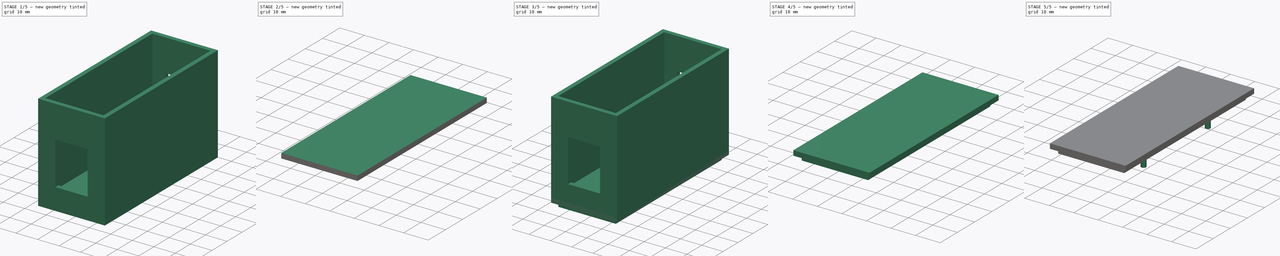
[diagram: build sequence overview — one tinted view per stage of 5, left to right]
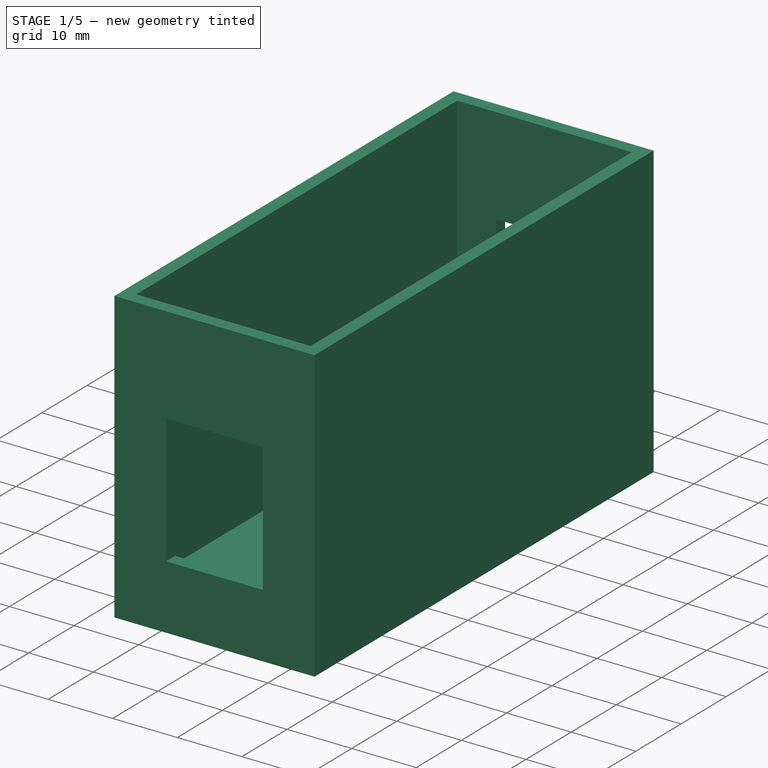
[diagram: stage 1 of 5 — iso view after this stage's code; geometry added in this stage tinted green]
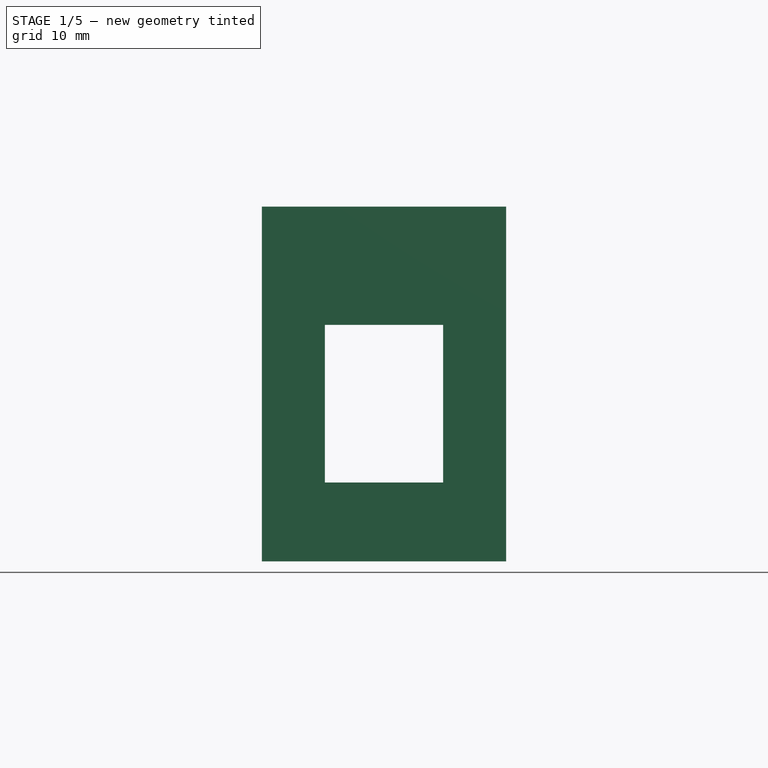
[diagram: stage 1 of 5 — front view after this stage's code; geometry added in this stage tinted green]
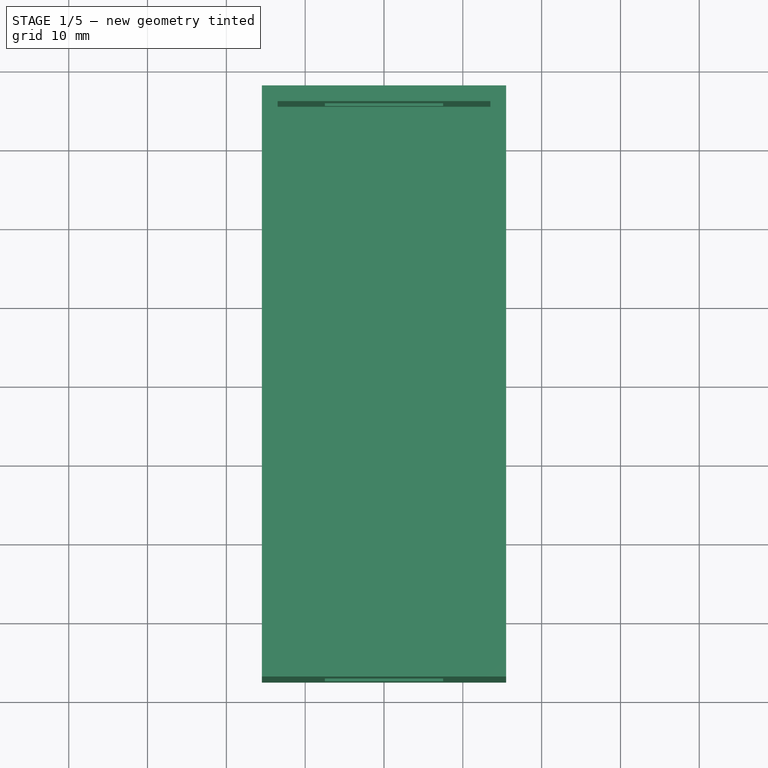
[diagram: stage 1 of 5 — top view after this stage's code; geometry added in this stage tinted green]
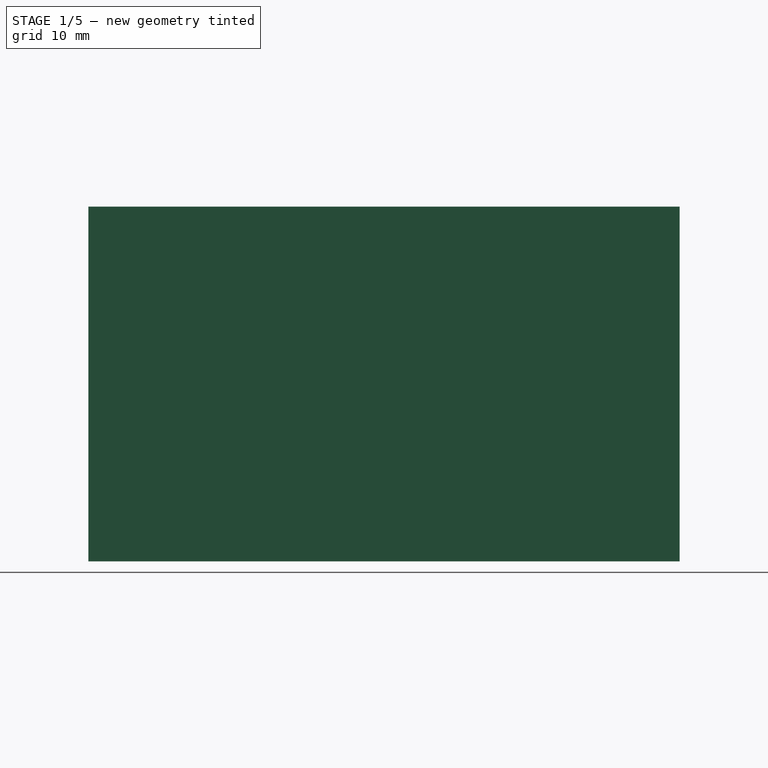
[diagram: stage 1 of 5 — right view after this stage's code; geometry added in this stage tinted green]
FCSTD DOCUMENT  (FreeCAD 0.21R)
Label: small_display
License: All rights reserved
LicenseURL: http://en.wikipedia.org/wiki/All_rights_reserved
objects: Sketcher::SketchObject×16, PartDesign::Pocket×9, PartDesign::Pad×7, PartDesign::Body×4, PartDesign::SubShapeBinder×2
note: 54 computed .brp shape members not serialized (recipe doc carries the construction recipe); baked Part::Feature solids carry a one-line shape summary decoded from their .brp

FEATURE [PartDesign::Body] Body001  label="display_lid"
  Group = -> [Binder,Sketch005,Pad001,Sketch006,Pad002,Sketch007,Pocket004,Sketch008,Pad003]
  Origin = -> Origin001
  Tip = -> Pad003
FEATURE [PartDesign::SubShapeBinder] Binder001
  BindCopyOnChange = 0
  BindMode = 0
  ClaimChildren = false
  Context = -> Body003 [Binder001.]
  Fuse = false
  MakeFace = true
  OffsetFill = false
  OffsetIntersection = false
  OffsetJoinType = 0
  OffsetOpenResult = false
  PartialLoad = false
  Relative = true
  Support = -> [Body002[Pocket008.Face4]]
  _Version = 2
FEATURE [Sketcher::SketchObject] Sketch009
  FullyConstrained = true
  MapMode = 5
  Support = -> [XY_Plane002]
  sketch-geometry (4):
    g0: LineSegment StartX=-15.5 StartY=37.5 StartZ=0 EndX=15.5 EndY=37.5 EndZ=0
    g1: LineSegment StartX=15.5 StartY=37.5 StartZ=0 EndX=15.5 EndY=-37.5 EndZ=0
    g2: LineSegment StartX=15.5 StartY=-37.5 StartZ=0 EndX=-15.5 EndY=-37.5 EndZ=0
    g3: LineSegment StartX=-15.5 StartY=-37.5 StartZ=0 EndX=-15.5 EndY=37.5 EndZ=0
  constraints (11):
    c: Coincident(g0,g1)
    c: Coincident(g1,g2)
    c: Coincident(g2,g3)
    c: Coincident(g3,g0)
    c: Horizontal(g0)
    c: Horizontal(g2)
    c: Vertical(g1)
    c: Vertical(g3)
    c: Distance(g1) = 75  'box_l'
    c: Distance(g0) = 31  'box_w'
    c: Symmetric(g0,g1,g-1)
FEATURE [PartDesign::Pad] Pad004
  Direction = (0,0,1)
  Length = 45
  Length2 = 10
  Profile = -> Sketch009
  ReferenceAxis = -> Sketch009 [N_Axis]
  Type = 0
FEATURE [Sketcher::SketchObject] Sketch010
  ExternalGeometry = -> [Pad004]
  FullyConstrained = true
  MapMode = 5
  Placement = pos=(0,-37.5,0) rot=(1,0,0;1.5708rad)
  Support = -> [Pad004]
  sketch-geometry (4):
    g0: LineSegment StartX=-7.5 StartY=30 StartZ=0 EndX=7.5 EndY=30 EndZ=0
    g1: LineSegment StartX=7.5 StartY=30 StartZ=0 EndX=7.5 EndY=10 EndZ=0
    g2: LineSegment StartX=7.5 StartY=10 StartZ=0 EndX=-7.5 EndY=10 EndZ=0
    g3: LineSegment StartX=-7.5 StartY=10 StartZ=0 EndX=-7.5 EndY=30 EndZ=0
  constraints (12):
    c: Coincident(g0,g1)
    c: Coincident(g1,g2)
    c: Coincident(g2,g3)
    c: Coincident(g3,g0)
    c: Horizontal(g0)
    c: Horizontal(g2)
    c: Vertical(g1)
    c: Vertical(g3)
    c: Distance(g1) = 20
    c: Distance(g0) = 15
    c: DistanceX(g-3,g0) = 8
    c: DistanceY(g-3,g2) = 10
FEATURE [PartDesign::Pocket] Pocket005
  BaseFeature = -> Pad004
  Direction = (0,1,-2e-16)
  Length = 75
  Length2 = 5
  Profile = -> Sketch010
  ReferenceAxis = -> Sketch010 [N_Axis]
  Type = 0
FEATURE [Sketcher::SketchObject] Sketch011
  ExternalGeometry = -> [Pocket005]
  FullyConstrained = true
  MapMode = 5
  Placement = pos=(0,0,45) rot=(0,0,1;0rad)
  Support = -> [Pocket005]
  sketch-geometry (4):
    g0: LineSegment StartX=-13.5 StartY=35.5 StartZ=0 EndX=13.5 EndY=35.5 EndZ=0
    g1: LineSegment StartX=13.5 StartY=35.5 StartZ=0 EndX=13.5 EndY=-35.5 EndZ=0
    g2: LineSegment StartX=13.5 StartY=-35.5 StartZ=0 EndX=-13.5 EndY=-35.5 EndZ=0
    g3: LineSegment StartX=-13.5 StartY=-35.5 StartZ=0 EndX=-13.5 EndY=35.5 EndZ=0
  constraints (12):
    c: Coincident(g0,g1)
    c: Coincident(g1,g2)
    c: Coincident(g2,g3)
    c: Coincident(g3,g0)
    c: Horizontal(g0)
    c: Horizontal(g2)
    c: Vertical(g1)
    c: Vertical(g3)
    c: DistanceX(g-3,g0) = 2
    c: DistanceX(g1,g-4) = 2
    c: DistanceY(g0,g-4) = 2
    c: DistanceY(g-3,g2) = 2
FEATURE [PartDesign::Pocket] Pocket006
  BaseFeature = -> Pocket005
  Direction = (0,0,-1)
  Length = 41
  Length2 = 5
  Profile = -> Sketch011
  ReferenceAxis = -> Sketch011 [N_Axis]
  Type = 0
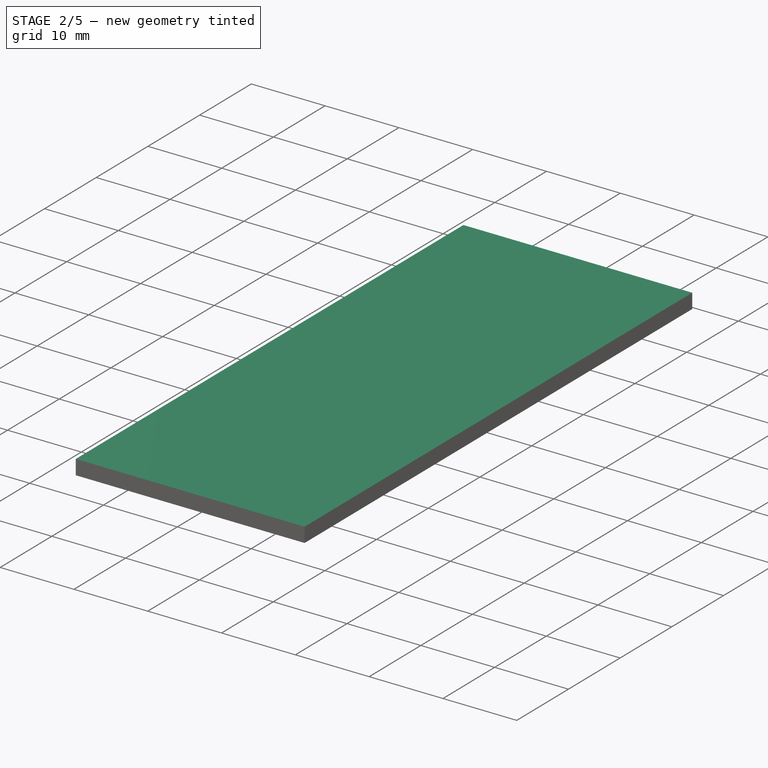
[diagram: stage 2 of 5 — iso view after this stage's code; geometry added in this stage tinted green]
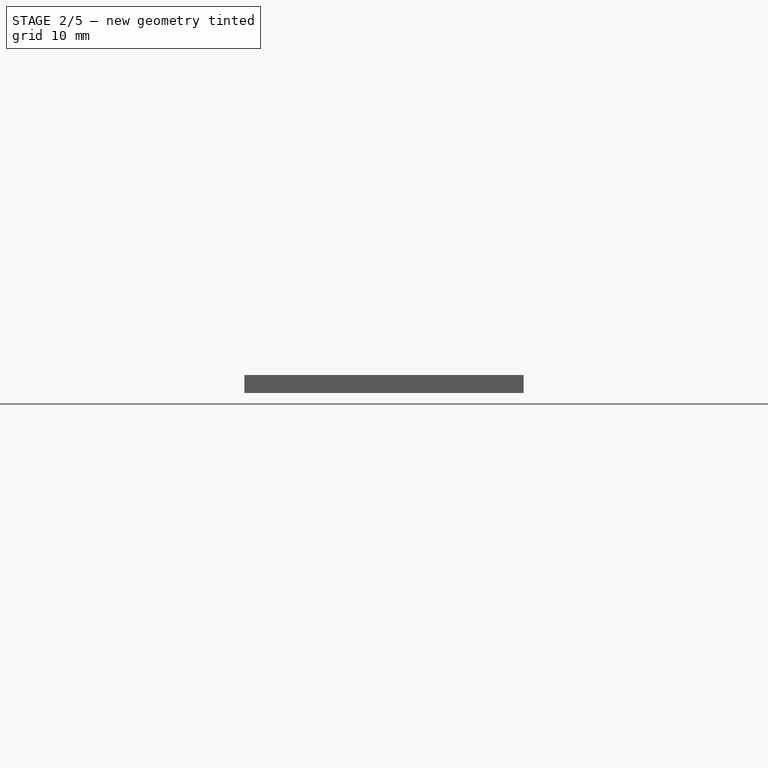
[diagram: stage 2 of 5 — front view after this stage's code; geometry added in this stage tinted green]
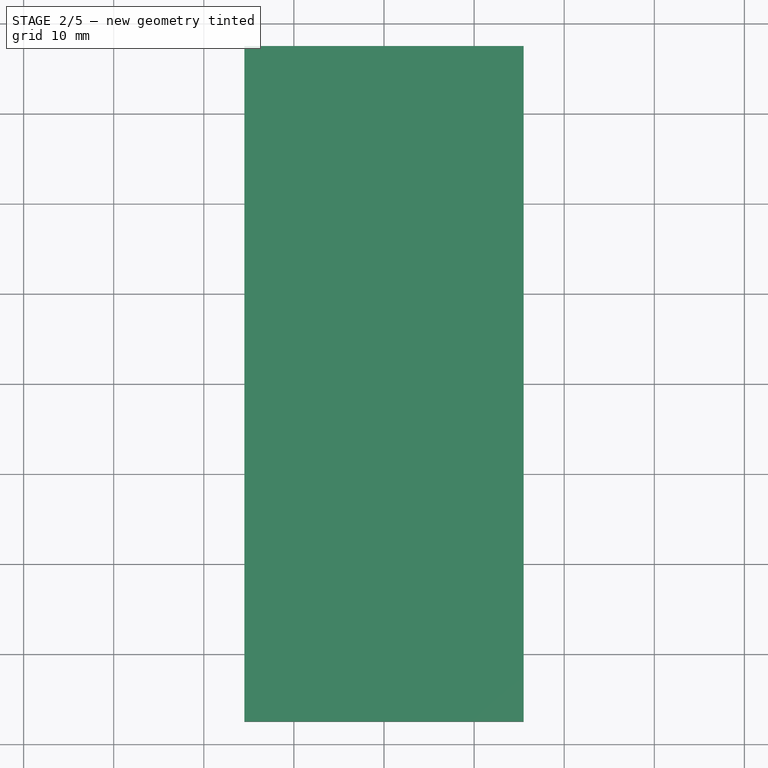
[diagram: stage 2 of 5 — top view after this stage's code; geometry added in this stage tinted green]
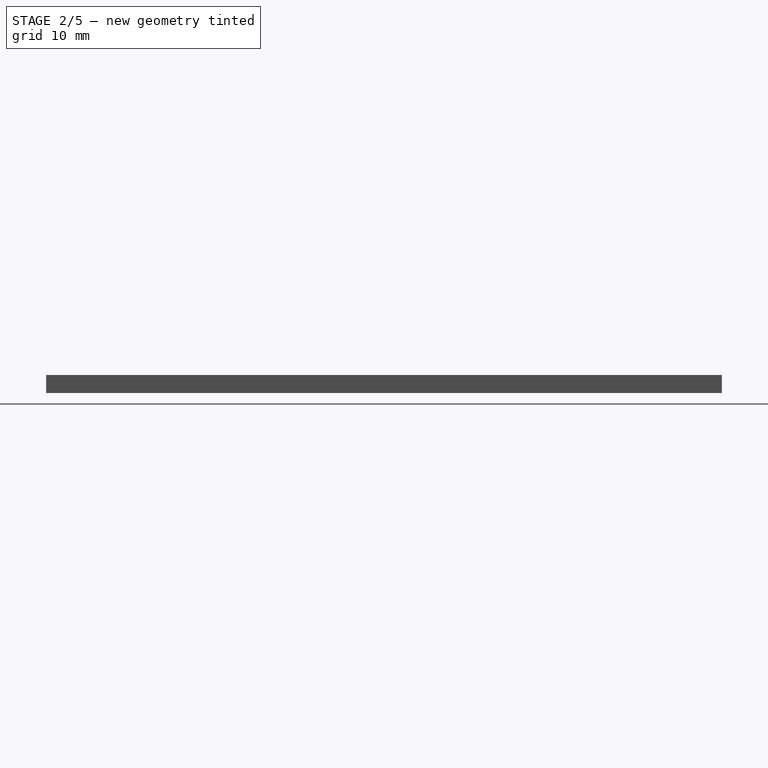
[diagram: stage 2 of 5 — right view after this stage's code; geometry added in this stage tinted green]
FEATURE [Sketcher::SketchObject] Sketch012
  ExternalGeometry = -> [Pocket006]
  FullyConstrained = true
  MapMode = 5
  Placement = pos=(0,0,4) rot=(0,0,1;0rad)
  Support = -> [Pocket006]
  sketch-geometry (4):
    g0: LineSegment StartX=-11 StartY=35.5 StartZ=0 EndX=11 EndY=35.5 EndZ=0
    g1: LineSegment StartX=11 StartY=35.5 StartZ=0 EndX=11 EndY=-17.5 EndZ=0
    g2: LineSegment StartX=11 StartY=-17.5 StartZ=0 EndX=-11 EndY=-17.5 EndZ=0
    g3: LineSegment StartX=-11 StartY=-17.5 StartZ=0 EndX=-11 EndY=35.5 EndZ=0
  constraints (11):
    c: Coincident(g0,g1)
    c: Coincident(g1,g2)
    c: Coincident(g2,g3)
    c: Coincident(g3,g0)
    c: Horizontal(g0)
    c: Vertical(g1)
    c: Vertical(g3)
    c: PointOnObject(g0,g-3)
    c: Distance(g2) = 22
    c: Distance(g1) = 53
    c: Symmetric(g2,g1,g-2)
FEATURE [PartDesign::Pocket] Pocket007
  BaseFeature = -> Pocket006
  Direction = (0,0,-1)
  Length = 3
  Length2 = 5
  Profile = -> Sketch012
  ReferenceAxis = -> Sketch012 [N_Axis]
  Type = 0
FEATURE [Sketcher::SketchObject] Sketch013
  ExternalGeometry = -> [Pocket007]
  FullyConstrained = true
  MapMode = 5
  Placement = pos=(0,35.5,0) rot=(1,0,0;1.5708rad)
  Support = -> [Pocket007]
  sketch-geometry (4):
    g0: LineSegment StartX=-4 StartY=1 StartZ=0 EndX=4 EndY=1 EndZ=0
    g1: LineSegment StartX=4 StartY=1 StartZ=0 EndX=4 EndY=5.5 EndZ=0
    g2: LineSegment StartX=4 StartY=5.5 StartZ=0 EndX=-4 EndY=5.5 EndZ=0
    g3: LineSegment StartX=-4 StartY=5.5 StartZ=0 EndX=-4 EndY=1 EndZ=0
  constraints (11):
    c: Coincident(g0,g1)
    c: Coincident(g1,g2)
    c: Coincident(g2,g3)
    c: Coincident(g3,g0)
    c: Horizontal(g0)
    c: Vertical(g1)
    c: Vertical(g3)
    c: PointOnObject(g0,g-4)
    c: Distance(g2) = 8
    c: Distance(g1) = 4.5
    c: Symmetric(g2,g1,g-2)
FEATURE [PartDesign::Pocket] Pocket008
  BaseFeature = -> Pocket007
  Direction = (0,1,-2e-16)
  Length = 5
  Length2 = 5
  Profile = -> Sketch013
  ReferenceAxis = -> Sketch013 [N_Axis]
  Type = 0
FEATURE [PartDesign::Body] Body002
  Group = -> [Sketch009,Pad004,Sketch010,Pocket005,Sketch011,Pocket006,Sketch012,Pocket007,Sketch013,Pocket008]
  Origin = -> Origin002
  Tip = -> Pocket008
FEATURE [Sketcher::SketchObject] Sketch014
  ExternalGeometry = -> [Binder001]
  FullyConstrained = true
  MapMode = 5
  Support = -> [XY_Plane003]
  sketch-geometry (4):
    g0: LineSegment StartX=-15.5 StartY=37.5 StartZ=0 EndX=15.5 EndY=37.5 EndZ=0
    g1: LineSegment StartX=15.5 StartY=37.5 StartZ=0 EndX=15.5 EndY=-37.5 EndZ=0
    g2: LineSegment StartX=15.5 StartY=-37.5 StartZ=0 EndX=-15.5 EndY=-37.5 EndZ=0
    g3: LineSegment StartX=-15.5 StartY=-37.5 StartZ=0 EndX=-15.5 EndY=37.5 EndZ=0
  constraints (10):
    c: Coincident(g0,g1)
    c: Coincident(g1,g2)
    c: Coincident(g2,g3)
    c: Coincident(g3,g0)
    c: Horizontal(g0)
    c: Horizontal(g2)
    c: Vertical(g1)
    c: Vertical(g3)
    c: Coincident(g0,g-3)
    c: Coincident(g1,g-4)
FEATURE [PartDesign::Pad] Pad005
  Direction = (0,0,1)
  Length = 2
  Length2 = 10
  Profile = -> Sketch014
  ReferenceAxis = -> Sketch014 [N_Axis]
  Type = 0
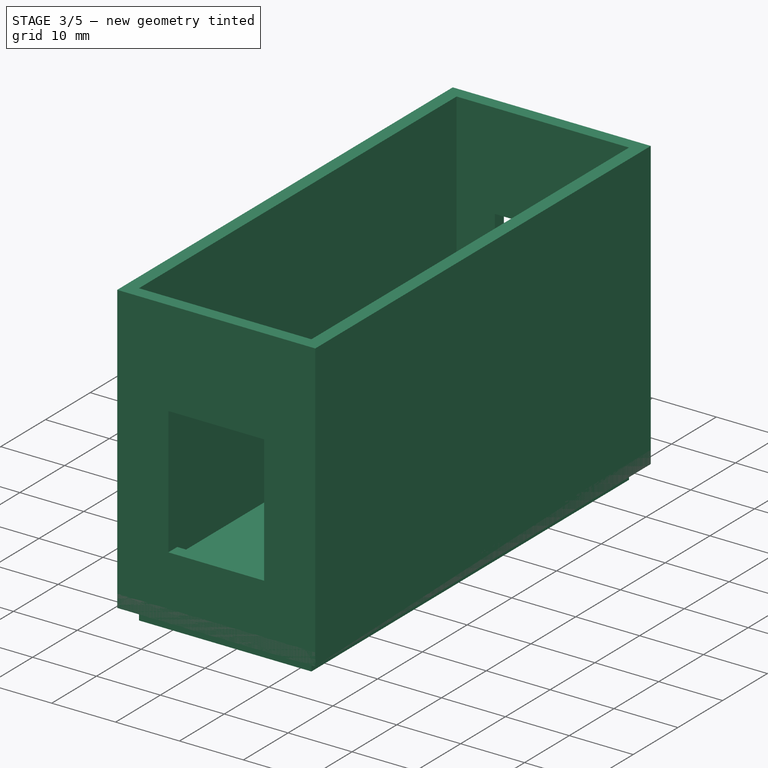
[diagram: stage 3 of 5 — iso view after this stage's code; geometry added in this stage tinted green]
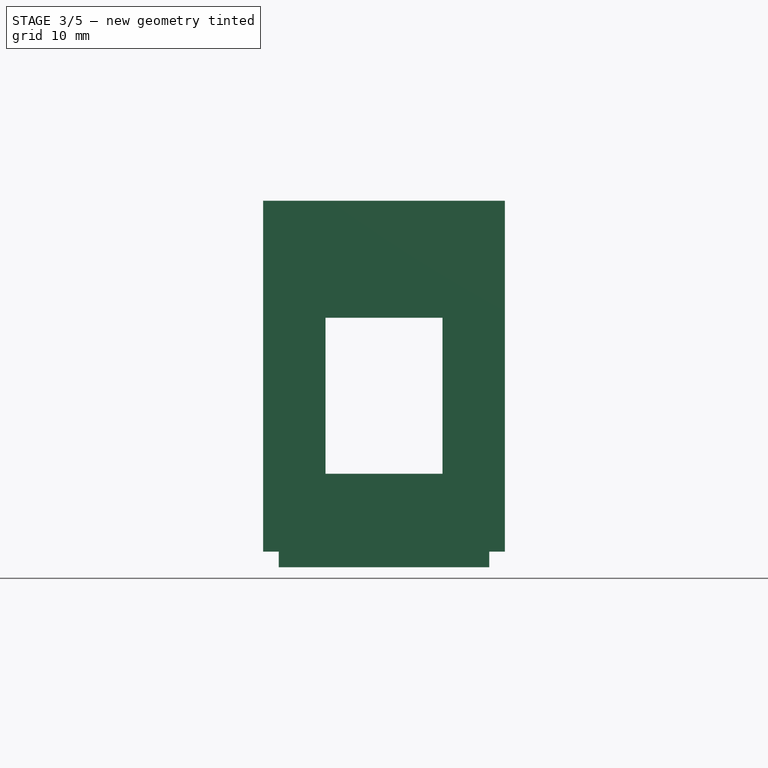
[diagram: stage 3 of 5 — front view after this stage's code; geometry added in this stage tinted green]
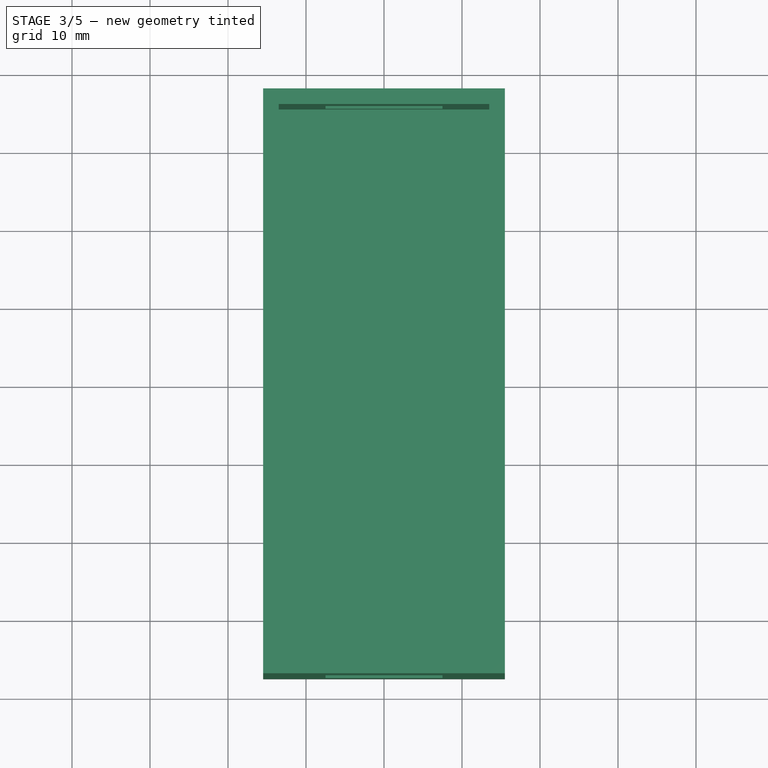
[diagram: stage 3 of 5 — top view after this stage's code; geometry added in this stage tinted green]
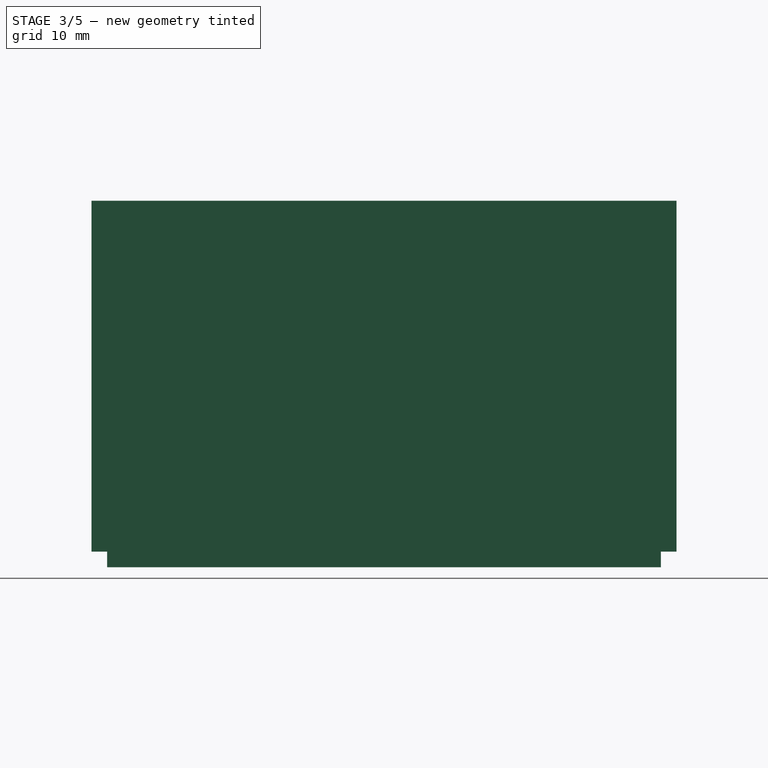
[diagram: stage 3 of 5 — right view after this stage's code; geometry added in this stage tinted green]
FEATURE [Sketcher::SketchObject] Sketch
  FullyConstrained = true
  MapMode = 5
  Support = -> [XY_Plane]
  sketch-geometry (4):
    g0: LineSegment StartX=-15.5 StartY=37.5 StartZ=0 EndX=15.5 EndY=37.5 EndZ=0
    g1: LineSegment StartX=15.5 StartY=37.5 StartZ=0 EndX=15.5 EndY=-37.5 EndZ=0
    g2: LineSegment StartX=15.5 StartY=-37.5 StartZ=0 EndX=-15.5 EndY=-37.5 EndZ=0
    g3: LineSegment StartX=-15.5 StartY=-37.5 StartZ=0 EndX=-15.5 EndY=37.5 EndZ=0
  constraints (11):
    c: Coincident(g0,g1)
    c: Coincident(g1,g2)
    c: Coincident(g2,g3)
    c: Coincident(g3,g0)
    c: Horizontal(g0)
    c: Horizontal(g2)
    c: Vertical(g1)
    c: Vertical(g3)
    c: Distance(g1) = 75  'box_l'
    c: Distance(g0) = 31  'box_w'
    c: Symmetric(g0,g1,g-1)
FEATURE [PartDesign::Pad] Pad
  Direction = (0,0,1)
  Length = 45
  Length2 = 10
  Profile = -> Sketch
  ReferenceAxis = -> Sketch [N_Axis]
  Type = 0
FEATURE [Sketcher::SketchObject] Sketch001
  ExternalGeometry = -> [Pad]
  FullyConstrained = true
  MapMode = 5
  Placement = pos=(0,-37.5,0) rot=(1,0,0;1.5708rad)
  Support = -> [Pad]
  sketch-geometry (4):
    g0: LineSegment StartX=-7.5 StartY=30 StartZ=0 EndX=7.5 EndY=30 EndZ=0
    g1: LineSegment StartX=7.5 StartY=30 StartZ=0 EndX=7.5 EndY=10 EndZ=0
    g2: LineSegment StartX=7.5 StartY=10 StartZ=0 EndX=-7.5 EndY=10 EndZ=0
    g3: LineSegment StartX=-7.5 StartY=10 StartZ=0 EndX=-7.5 EndY=30 EndZ=0
  constraints (12):
    c: Coincident(g0,g1)
    c: Coincident(g1,g2)
    c: Coincident(g2,g3)
    c: Coincident(g3,g0)
    c: Horizontal(g0)
    c: Horizontal(g2)
    c: Vertical(g1)
    c: Vertical(g3)
    c: Distance(g1) = 20
    c: Distance(g0) = 15
    c: DistanceX(g-3,g0) = 8
    c: DistanceY(g-3,g2) = 10
FEATURE [PartDesign::Pocket] Pocket
  BaseFeature = -> Pad
  Direction = (0,1,-2e-16)
  Length = 75
  Length2 = 5
  Profile = -> Sketch001
  ReferenceAxis = -> Sketch001 [N_Axis]
  Type = 0
FEATURE [Sketcher::SketchObject] Sketch002
  ExternalGeometry = -> [Pocket]
  FullyConstrained = true
  MapMode = 5
  Placement = pos=(0,0,45) rot=(0,0,1;0rad)
  Support = -> [Pocket]
  sketch-geometry (4):
    g0: LineSegment StartX=-13.5 StartY=35.5 StartZ=0 EndX=13.5 EndY=35.5 EndZ=0
    g1: LineSegment StartX=13.5 StartY=35.5 StartZ=0 EndX=13.5 EndY=-35.5 EndZ=0
    g2: LineSegment StartX=13.5 StartY=-35.5 StartZ=0 EndX=-13.5 EndY=-35.5 EndZ=0
    g3: LineSegment StartX=-13.5 StartY=-35.5 StartZ=0 EndX=-13.5 EndY=35.5 EndZ=0
  constraints (12):
    c: Coincident(g0,g1)
    c: Coincident(g1,g2)
    c: Coincident(g2,g3)
    c: Coincident(g3,g0)
    c: Horizontal(g0)
    c: Horizontal(g2)
    c: Vertical(g1)
    c: Vertical(g3)
    c: DistanceX(g-3,g0) = 2
    c: DistanceX(g1,g-4) = 2
    c: DistanceY(g0,g-4) = 2
    c: DistanceY(g-3,g2) = 2
FEATURE [PartDesign::Pocket] Pocket001
  BaseFeature = -> Pocket
  Direction = (0,0,-1)
  Length = 41
  Length2 = 5
  Profile = -> Sketch002
  ReferenceAxis = -> Sketch002 [N_Axis]
  Type = 0
FEATURE [Sketcher::SketchObject] Sketch015
  ExternalGeometry = -> [Binder001]
  FullyConstrained = true
  MapMode = 5
  Placement = pos=(0,0,0) rot=(1,0,0;3.14159rad)
  Support = -> [Pad005]
  sketch-geometry (4):
    g0: LineSegment StartX=-13.5 StartY=35.5 StartZ=0 EndX=13.5 EndY=35.5 EndZ=0
    g1: LineSegment StartX=13.5 StartY=35.5 StartZ=0 EndX=13.5 EndY=-35.5 EndZ=0
    g2: LineSegment StartX=13.5 StartY=-35.5 StartZ=0 EndX=-13.5 EndY=-35.5 EndZ=0
    g3: LineSegment StartX=-13.5 StartY=-35.5 StartZ=0 EndX=-13.5 EndY=35.5 EndZ=0
  constraints (10):
    c: Coincident(g0,g1)
    c: Coincident(g1,g2)
    c: Coincident(g2,g3)
    c: Coincident(g3,g0)
    c: Horizontal(g0)
    c: Horizontal(g2)
    c: Vertical(g1)
    c: Vertical(g3)
    c: Coincident(g0,g-3)
    c: Coincident(g1,g-4)
FEATURE [PartDesign::Pad] Pad006
  BaseFeature = -> Pad005
  Direction = (0,0,-1)
  Length = 2
  Length2 = 10
  Profile = -> Sketch015
  ReferenceAxis = -> Sketch015 [N_Axis]
  Type = 0
FEATURE [PartDesign::Body] Body003  label="solid_lid"
  Group = -> [Binder001,Sketch014,Pad005,Sketch015,Pad006]
  Origin = -> Origin003
  Tip = -> Pad006
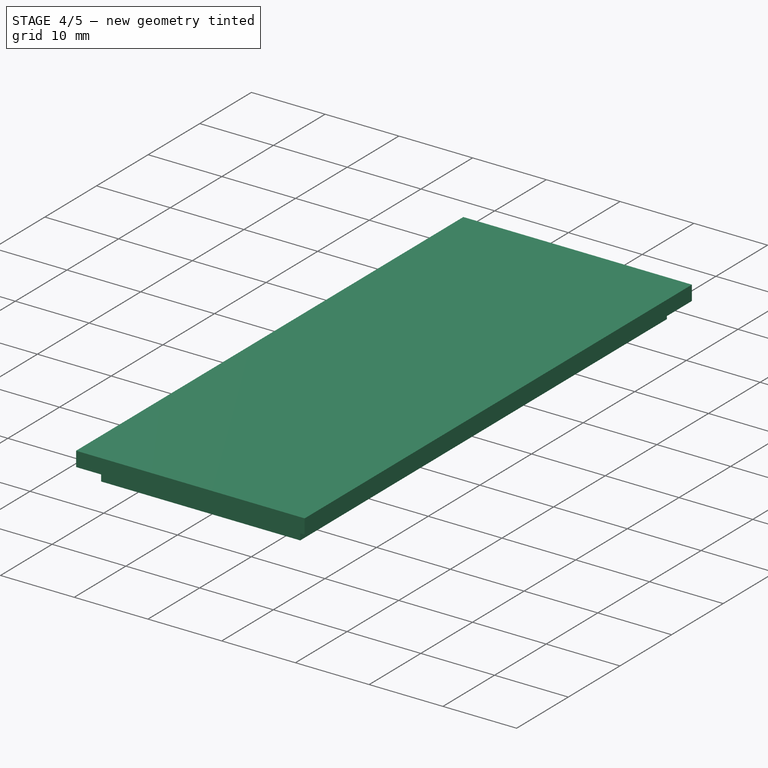
[diagram: stage 4 of 5 — iso view after this stage's code; geometry added in this stage tinted green]
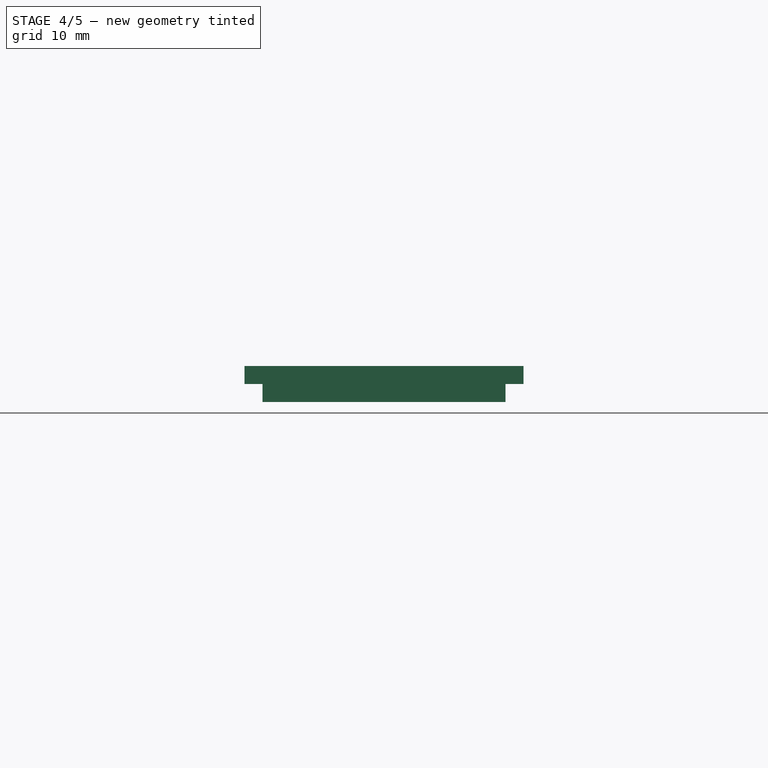
[diagram: stage 4 of 5 — front view after this stage's code; geometry added in this stage tinted green]
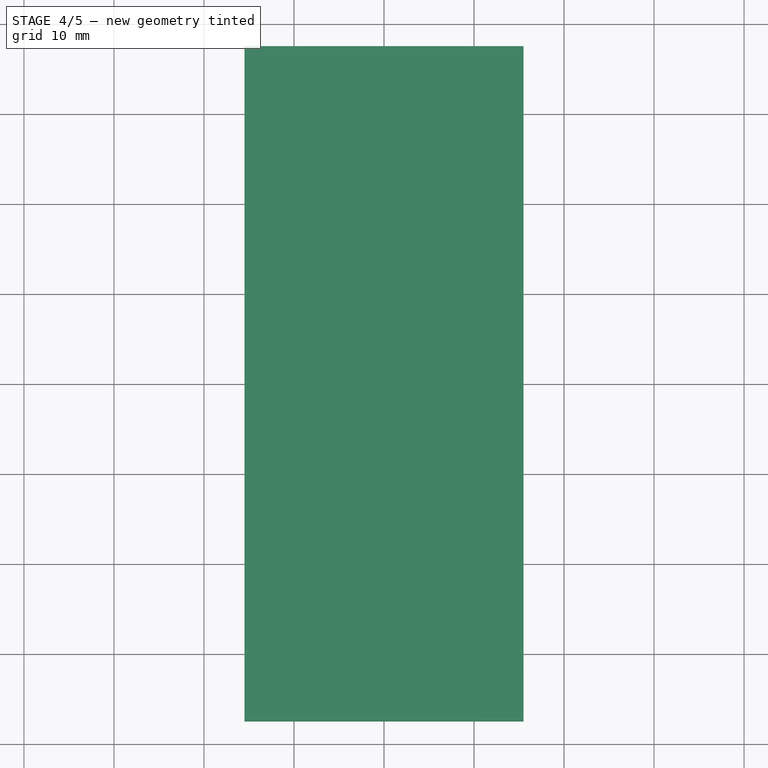
[diagram: stage 4 of 5 — top view after this stage's code; geometry added in this stage tinted green]
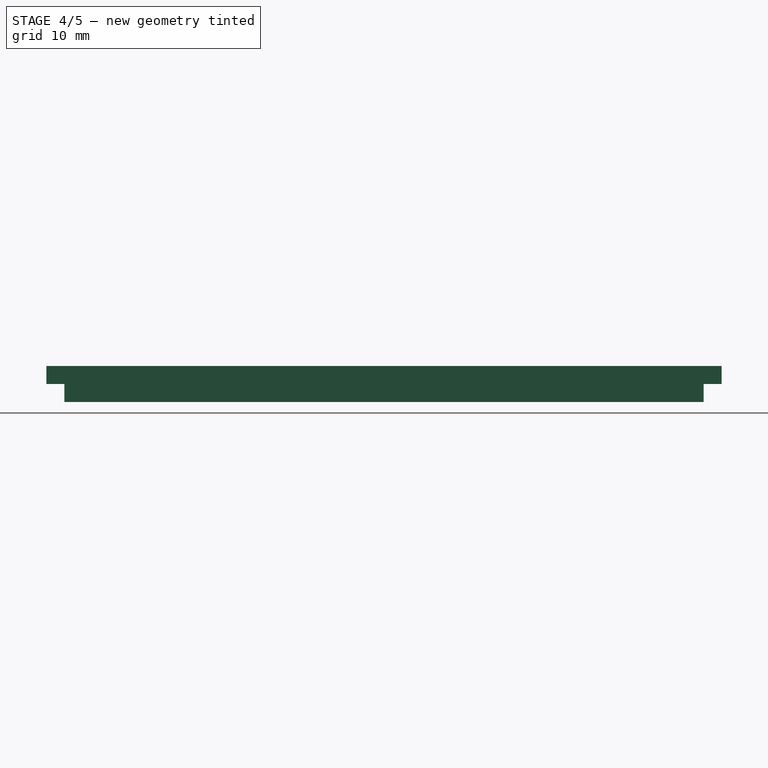
[diagram: stage 4 of 5 — right view after this stage's code; geometry added in this stage tinted green]
FEATURE [Sketcher::SketchObject] Sketch003
  ExternalGeometry = -> [Pocket001]
  FullyConstrained = true
  MapMode = 5
  Placement = pos=(0,0,4) rot=(0,0,1;0rad)
  Support = -> [Pocket001]
  sketch-geometry (4):
    g0: LineSegment StartX=-11 StartY=35.5 StartZ=0 EndX=11 EndY=35.5 EndZ=0
    g1: LineSegment StartX=11 StartY=35.5 StartZ=0 EndX=11 EndY=-17.5 EndZ=0
    g2: LineSegment StartX=11 StartY=-17.5 StartZ=0 EndX=-11 EndY=-17.5 EndZ=0
    g3: LineSegment StartX=-11 StartY=-17.5 StartZ=0 EndX=-11 EndY=35.5 EndZ=0
  constraints (11):
    c: Coincident(g0,g1)
    c: Coincident(g1,g2)
    c: Coincident(g2,g3)
    c: Coincident(g3,g0)
    c: Horizontal(g0)
    c: Vertical(g1)
    c: Vertical(g3)
    c: PointOnObject(g0,g-3)
    c: Distance(g2) = 22
    c: Distance(g1) = 53
    c: Symmetric(g2,g1,g-2)
FEATURE [PartDesign::Pocket] Pocket002
  BaseFeature = -> Pocket001
  Direction = (0,0,-1)
  Length = 3
  Length2 = 5
  Profile = -> Sketch003
  ReferenceAxis = -> Sketch003 [N_Axis]
  Type = 0
FEATURE [Sketcher::SketchObject] Sketch004
  ExternalGeometry = -> [Pocket002]
  FullyConstrained = true
  MapMode = 5
  Placement = pos=(0,35.5,0) rot=(1,0,0;1.5708rad)
  Support = -> [Pocket002]
  sketch-geometry (4):
    g0: LineSegment StartX=-4 StartY=1 StartZ=0 EndX=4 EndY=1 EndZ=0
    g1: LineSegment StartX=4 StartY=1 StartZ=0 EndX=4 EndY=5.5 EndZ=0
    g2: LineSegment StartX=4 StartY=5.5 StartZ=0 EndX=-4 EndY=5.5 EndZ=0
    g3: LineSegment StartX=-4 StartY=5.5 StartZ=0 EndX=-4 EndY=1 EndZ=0
  constraints (11):
    c: Coincident(g0,g1)
    c: Coincident(g1,g2)
    c: Coincident(g2,g3)
    c: Coincident(g3,g0)
    c: Horizontal(g0)
    c: Vertical(g1)
    c: Vertical(g3)
    c: PointOnObject(g0,g-4)
    c: Distance(g2) = 8
    c: Distance(g1) = 4.5
    c: Symmetric(g2,g1,g-2)
FEATURE [PartDesign::Pocket] Pocket003
  BaseFeature = -> Pocket002
  Direction = (0,1,-2e-16)
  Length = 5
  Length2 = 5
  Profile = -> Sketch004
  ReferenceAxis = -> Sketch004 [N_Axis]
  Type = 0
FEATURE [PartDesign::Body] Body
  Group = -> [Sketch,Pad,Sketch001,Pocket,Sketch002,Pocket001,Sketch003,Pocket002,Sketch004,Pocket003]
  Origin = -> Origin
  Tip = -> Pocket003
FEATURE [PartDesign::SubShapeBinder] Binder
  BindCopyOnChange = 0
  BindMode = 0
  ClaimChildren = false
  Context = -> Body001 [Binder.]
  Fuse = false
  MakeFace = true
  OffsetFill = false
  OffsetIntersection = false
  OffsetJoinType = 0
  OffsetOpenResult = false
  PartialLoad = false
  Relative = true
  Support = -> [Body[Pocket003.Face4]]
  _Version = 2
FEATURE [Sketcher::SketchObject] Sketch005
  ExternalGeometry = -> [Binder]
  FullyConstrained = true
  MapMode = 5
  Support = -> [XY_Plane001]
  sketch-geometry (4):
    g0: LineSegment StartX=-15.5 StartY=37.5 StartZ=0 EndX=15.5 EndY=37.5 EndZ=0
    g1: LineSegment StartX=15.5 StartY=37.5 StartZ=0 EndX=15.5 EndY=-37.5 EndZ=0
    g2: LineSegment StartX=15.5 StartY=-37.5 StartZ=0 EndX=-15.5 EndY=-37.5 EndZ=0
    g3: LineSegment StartX=-15.5 StartY=-37.5 StartZ=0 EndX=-15.5 EndY=37.5 EndZ=0
  constraints (10):
    c: Coincident(g0,g1)
    c: Coincident(g1,g2)
    c: Coincident(g2,g3)
    c: Coincident(g3,g0)
    c: Horizontal(g0)
    c: Horizontal(g2)
    c: Vertical(g1)
    c: Vertical(g3)
    c: Coincident(g0,g-3)
    c: Coincident(g1,g-4)
FEATURE [PartDesign::Pad] Pad001
  Direction = (0,0,1)
  Length = 2
  Length2 = 10
  Profile = -> Sketch005
  ReferenceAxis = -> Sketch005 [N_Axis]
  Type = 0
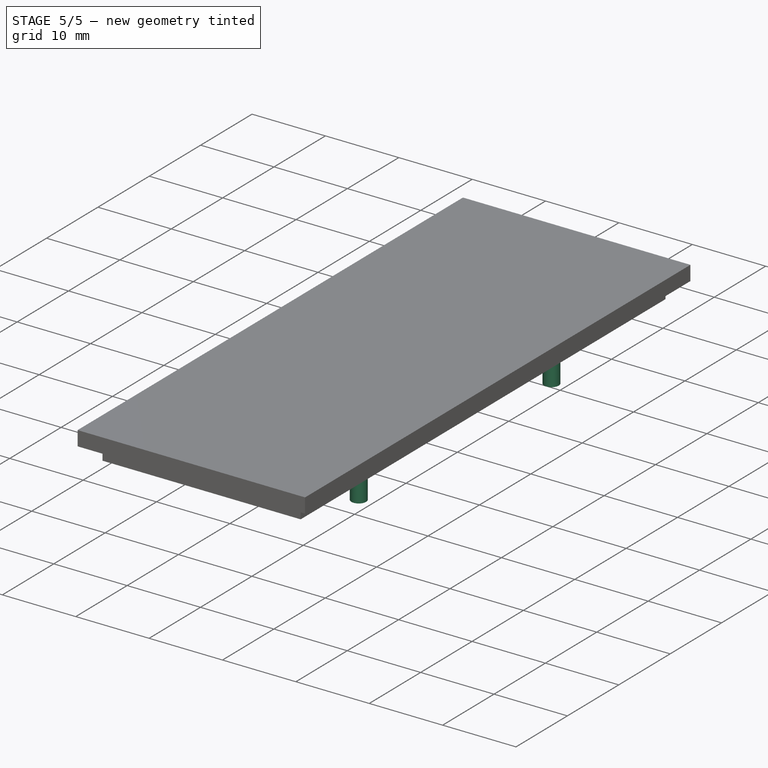
[diagram: stage 5 of 5 — iso view after this stage's code; geometry added in this stage tinted green]
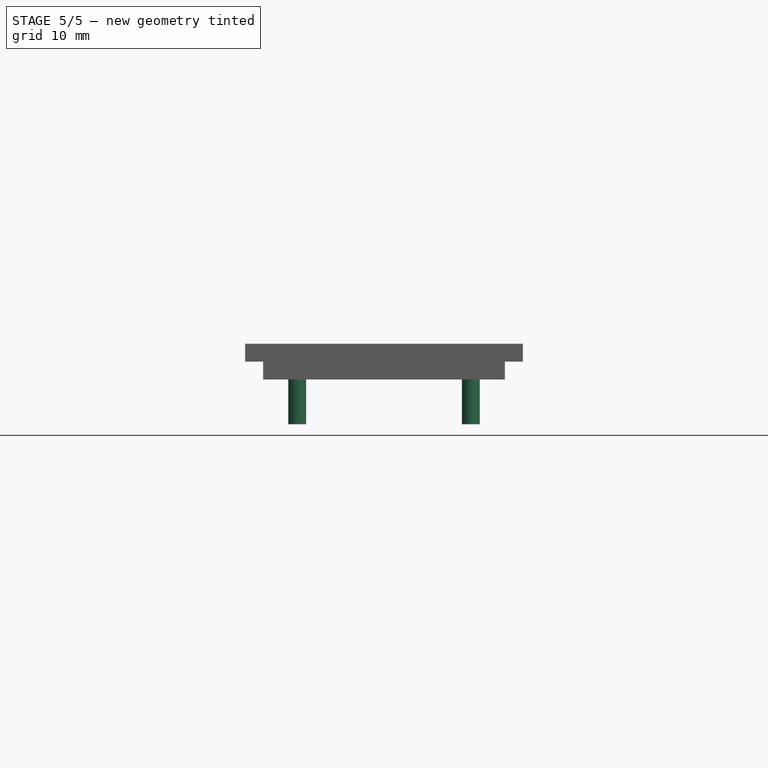
[diagram: stage 5 of 5 — front view after this stage's code; geometry added in this stage tinted green]
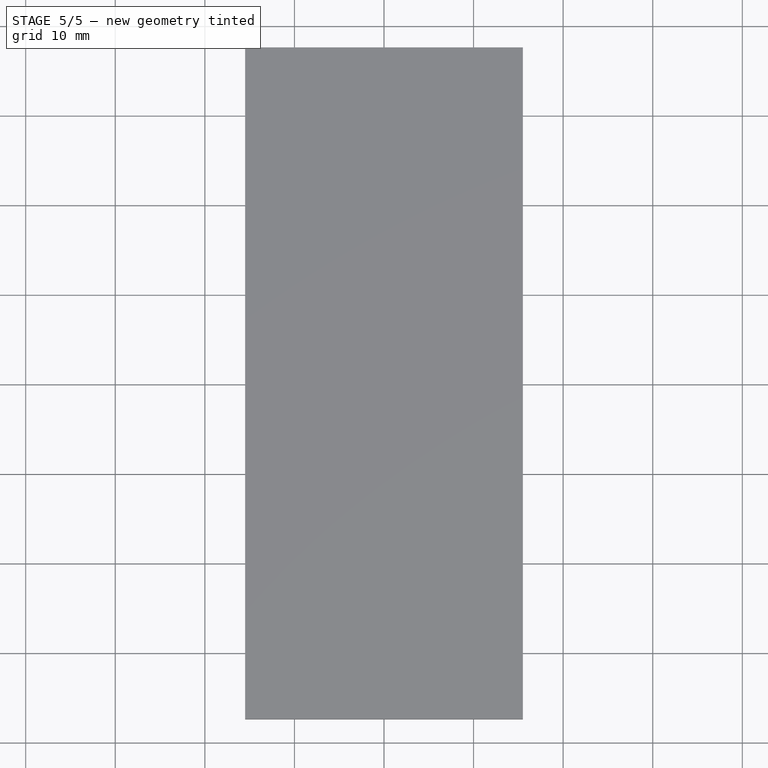
[diagram: stage 5 of 5 — top view after this stage's code; geometry added in this stage tinted green]
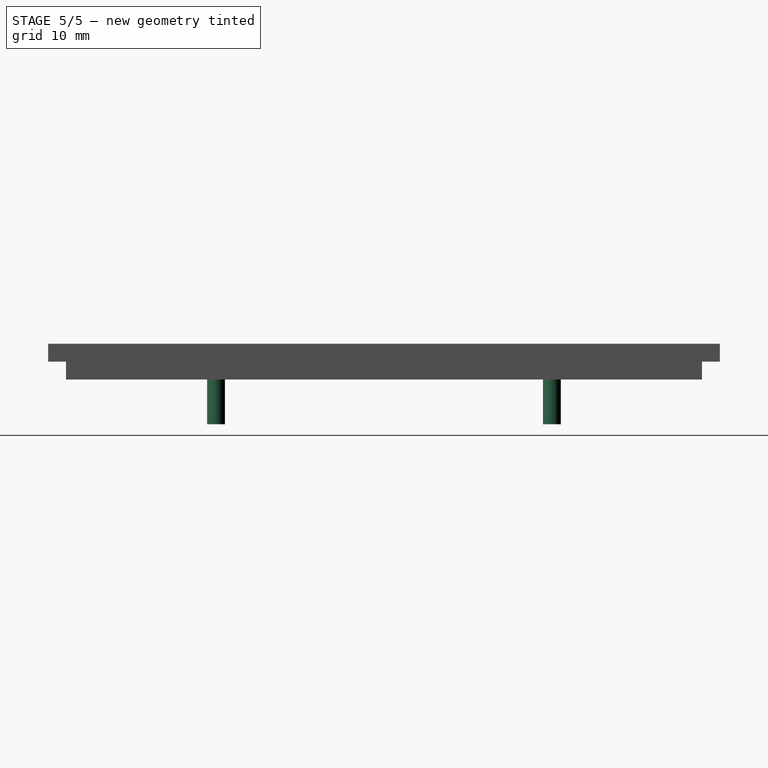
[diagram: stage 5 of 5 — right view after this stage's code; geometry added in this stage tinted green]
FEATURE [Sketcher::SketchObject] Sketch006
  ExternalGeometry = -> [Binder]
  FullyConstrained = true
  MapMode = 5
  Placement = pos=(0,0,0) rot=(1,0,0;3.14159rad)
  Support = -> [Pad001]
  sketch-geometry (4):
    g0: LineSegment StartX=-13.5 StartY=35.5 StartZ=0 EndX=13.5 EndY=35.5 EndZ=0
    g1: LineSegment StartX=13.5 StartY=35.5 StartZ=0 EndX=13.5 EndY=-35.5 EndZ=0
    g2: LineSegment StartX=13.5 StartY=-35.5 StartZ=0 EndX=-13.5 EndY=-35.5 EndZ=0
    g3: LineSegment StartX=-13.5 StartY=-35.5 StartZ=0 EndX=-13.5 EndY=35.5 EndZ=0
  constraints (10):
    c: Coincident(g0,g1)
    c: Coincident(g1,g2)
    c: Coincident(g2,g3)
    c: Coincident(g3,g0)
    c: Horizontal(g0)
    c: Horizontal(g2)
    c: Vertical(g1)
    c: Vertical(g3)
    c: Coincident(g0,g-3)
    c: Coincident(g1,g-4)
FEATURE [PartDesign::Pad] Pad002
  BaseFeature = -> Pad001
  Direction = (0,0,-1)
  Length = 2
  Length2 = 10
  Profile = -> Sketch006
  ReferenceAxis = -> Sketch006 [N_Axis]
  Type = 0
FEATURE [Sketcher::SketchObject] Sketch007
  ExternalGeometry = -> [Pad002]
  FullyConstrained = true
  MapMode = 5
  Placement = pos=(0,0,-2) rot=(1,0,0;3.14159rad)
  Support = -> [Pad002]
  sketch-geometry (7):
    g0: LineSegment StartX=-7.5 StartY=15.5 StartZ=0 EndX=7.5 EndY=15.5 EndZ=0
    g1: LineSegment StartX=7.5 StartY=15.5 StartZ=0 EndX=7.5 EndY=-15.5 EndZ=0
    g2: LineSegment StartX=7.5 StartY=-15.5 StartZ=0 EndX=-7.5 EndY=-15.5 EndZ=0
    g3: LineSegment StartX=-7.5 StartY=-15.5 StartZ=0 EndX=-7.5 EndY=15.5 EndZ=0
    g4: LineSegment StartX=-13.5 StartY=35.5 StartZ=0 EndX=-7.5 EndY=15.5 EndZ=0
    g5: LineSegment StartX=7.5 StartY=-15.5 StartZ=0 EndX=13.5 EndY=-35.5 EndZ=0
    g6: LineSegment StartX=7.5 StartY=15.5 StartZ=0 EndX=13.5 EndY=35.5 EndZ=0
  constraints (18):
    c: Coincident(g0,g1)
    c: Coincident(g1,g2)
    c: Coincident(g2,g3)
    c: Coincident(g3,g0)
    c: Horizontal(g0)
    c: Horizontal(g2)
    c: Vertical(g1)
    c: Vertical(g3)
    c: Distance(g0) = 15
    c: Distance(g1) = 31
    c: Coincident(g4,g-3)
    c: Coincident(g4,g0)
    c: Coincident(g5,g1)
    c: Coincident(g5,g-4)
    c: Coincident(g6,g0)
    c: Coincident(g6,g-4)
    c: Equal(g4,g6)
    c: Equal(g6,g5)
FEATURE [PartDesign::Pocket] Pocket004
  BaseFeature = -> Pad002
  Direction = (0,0,1)
  Length = 5
  Length2 = 5
  Profile = -> Sketch007
  ReferenceAxis = -> Sketch007 [N_Axis]
  Type = 0
FEATURE [Sketcher::SketchObject] Sketch008
  ExternalGeometry = -> [Pocket004]
  FullyConstrained = true
  MapMode = 5
  Placement = pos=(0,0,-2) rot=(1,0,0;3.14159rad)
  Support = -> [Pocket004]
  sketch-geometry (7):
    g0: Circle CenterX=-9.6875 CenterY=18.75 CenterZ=0 NormalX=0 NormalY=0 NormalZ=1 AngleXU=0 Radius=1
    g1: Circle CenterX=9.6875 CenterY=18.75 CenterZ=0 NormalX=0 NormalY=0 NormalZ=1 AngleXU=0 Radius=1
    g2: Circle CenterX=9.6875 CenterY=-18.75 CenterZ=0 NormalX=0 NormalY=0 NormalZ=1 AngleXU=0 Radius=1
    g3: Circle CenterX=-9.6875 CenterY=-18.75 CenterZ=0 NormalX=0 NormalY=0 NormalZ=1 AngleXU=0 Radius=1
    g4: LineSegment StartX=-9.6875 StartY=18.75 StartZ=0 EndX=-7.5 EndY=15.5 EndZ=0
    g5: LineSegment StartX=9.6875 StartY=18.75 StartZ=0 EndX=7.5 EndY=15.5 EndZ=0
    g6: LineSegment StartX=9.6875 StartY=-18.75 StartZ=0 EndX=7.5 EndY=-15.5 EndZ=0
  constraints (18):
    c: DistanceY(g2,g1) = 37.5
    c: DistanceX(g0,g1) = 19.375
    c: DistanceX(g0,g3) = 0
    c: DistanceX(g2,g1) = 0
    c: DistanceY(g3,g2) = 0
    c: DistanceY(g1,g0) = 0
    c: Coincident(g4,g0)
    c: Coincident(g4,g-3)
    c: Coincident(g5,g1)
    c: Coincident(g5,g-4)
    c: Coincident(g6,g2)
    c: Coincident(g6,g-4)
    c: Equal(g4,g5)
    c: Equal(g6,g5)
    c: Diameter(g0) = 2
    c: Diameter(g1) = 2
    c: Diameter(g3) = 2
    c: Diameter(g2) = 2
FEATURE [PartDesign::Pad] Pad003
  BaseFeature = -> Pocket004
  Direction = (0,0,-1)
  Length = 5
  Length2 = 10
  Profile = -> Sketch008
  ReferenceAxis = -> Sketch008 [N_Axis]
  Type = 0
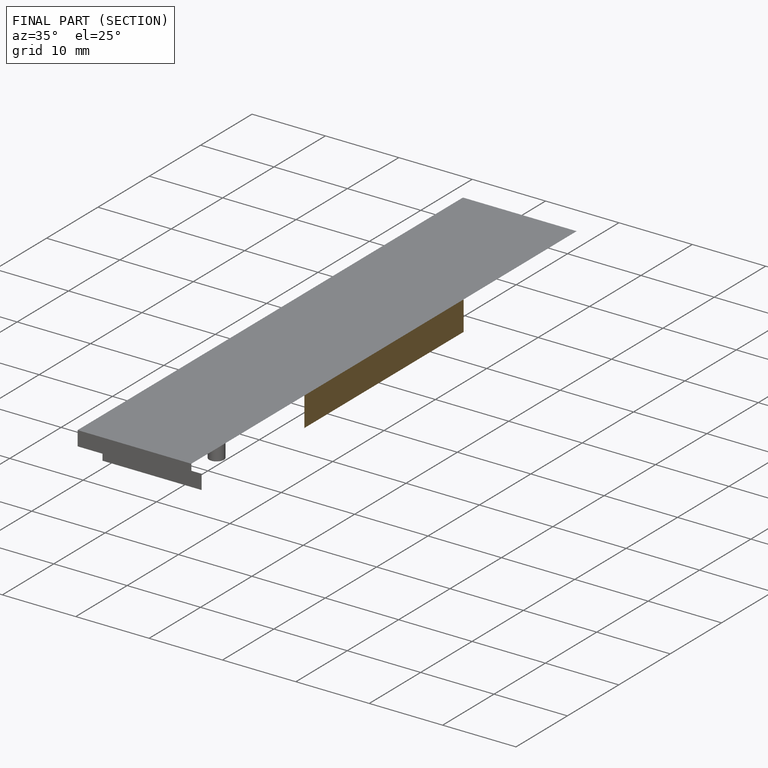
[diagram: finished part — half-section view (interior)]
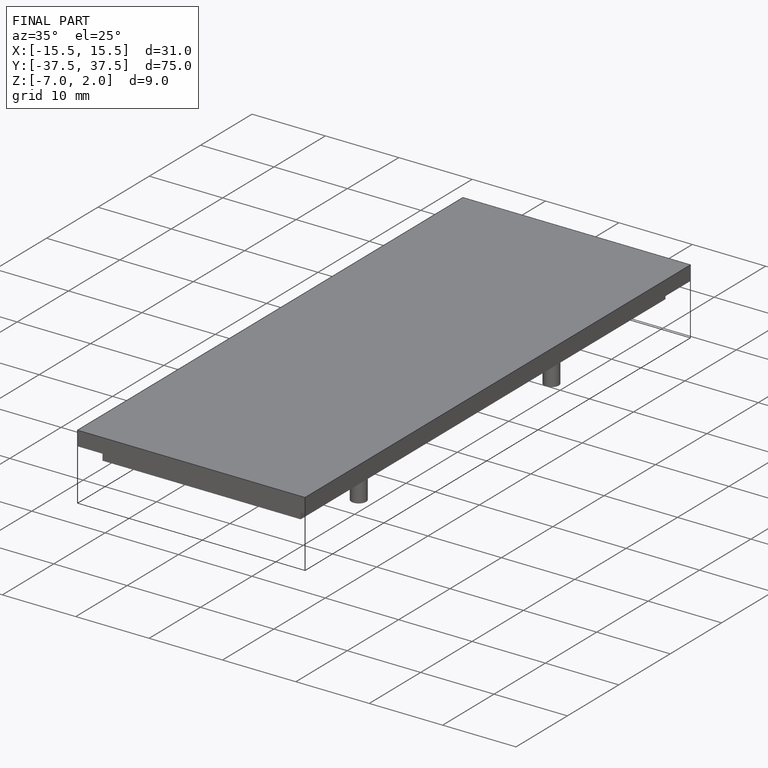
[diagram: finished part — iso view with bounding-box wireframe]
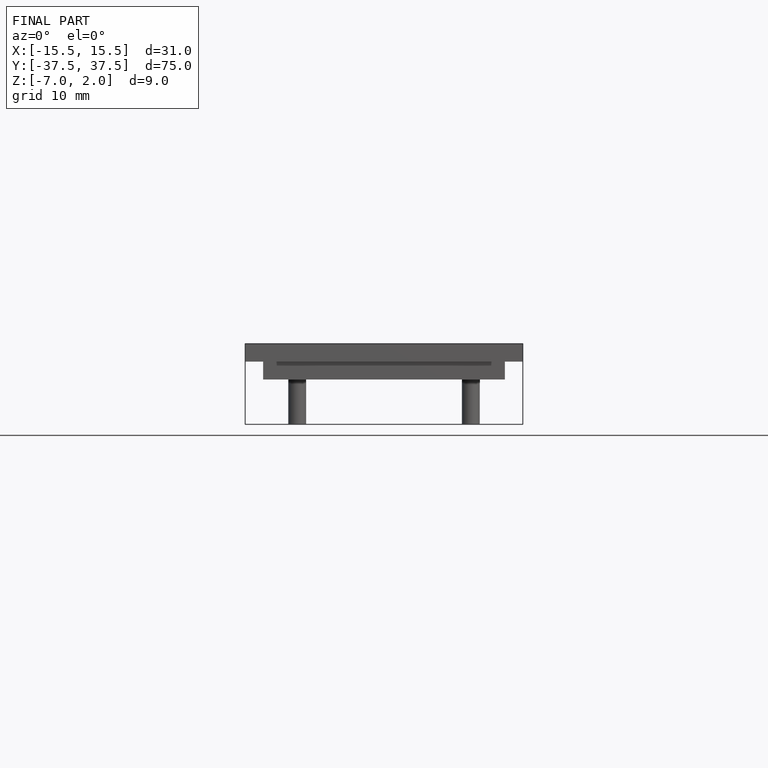
[diagram: finished part — front view with bounding-box wireframe]
